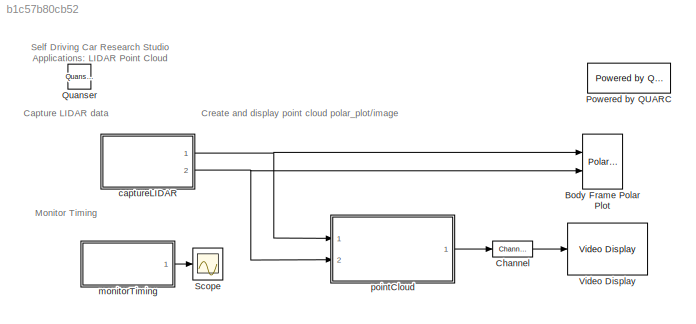
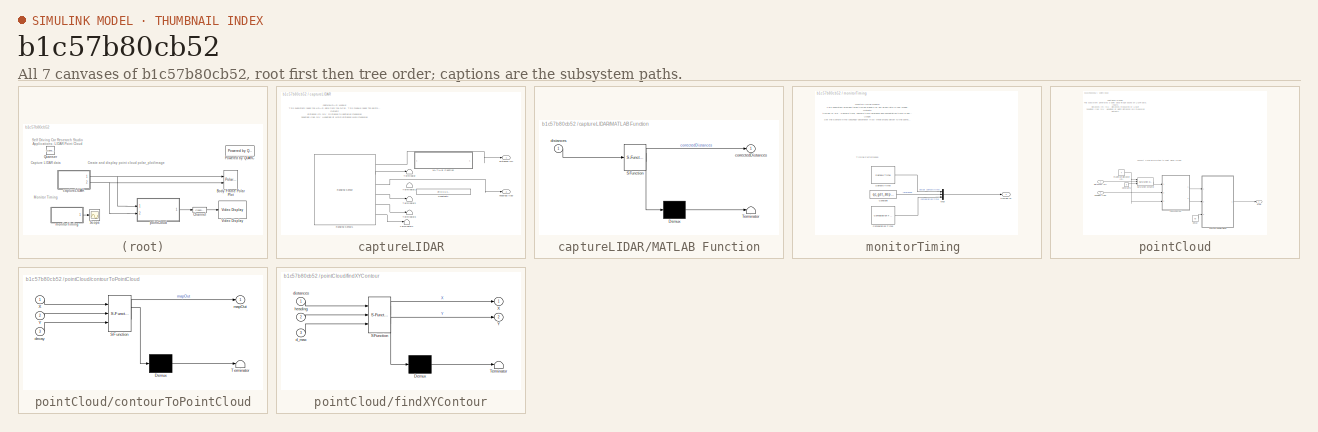
[diagram: thumbnail index - all 7 canvases of the model, root first then tree order]
MODEL slx_b1c57b80cb52
KIND model
CONFIG AbsTol = auto
CONFIG EnableMultiTasking = on
CONFIG FixedStep = 1/30
CONFIG MaxStep = auto
CONFIG MinStep = auto
CONFIG RelTol = 1e-3
CONFIG SampleTimeConstraint = Unconstrained
CONFIG SolverName = ode2
CONFIG StartTime = 0.0
CONFIG StopTime = inf
BLOCK [Reference] Body Frame Polar Plot  REF=quarc_library/Sinks/Figures/Polar Figure
  Ports = [2]
  SourceBlock = quarc_library/Sinks/Figures/Polar Figure
  SourceProductName = QUARC Targets
  SourceType = Polar Figure
BLOCK [Reference] Channel  REF=quarc_library/Signal Routing/Channel
  Ports = [1, 1]
  SourceBlock = quarc_library/Signal Routing/Channel
  SourceProductName = QUARC Targets
  SourceType = Channel
BLOCK [Reference] Powered by QUARC  REF=quarc_library/Logos/Powered by QUARC
  Ports = []
  SourceBlock = quarc_library/Logos/Powered by QUARC
  SourceProductName = QUARC Targets
  SourceType = Powered by QUARC
BLOCK [Reference] Quanser  REF=quarc_library/Logos/Quanser
  Ports = []
  SourceBlock = quarc_library/Logos/Quanser
  SourceProductName = QUARC Targets
  SourceType = Powered by Quanser
BLOCK [Scope] Scope
  Floating = off
  NumInputPorts = 1
  Ports = [1]
  ScopeSpecificationString = Simulink.scopes.TimeScopeBlockCfg('CurrentConfiguration', extmgr.ConfigurationSet(extmgr.Configuration('Core','General UI',true),extmgr.Configuration('Core','Source UI',true),extmgr.Configuration('Sources','WiredSimulink',true),extmgr.Configuration('Visuals','Time Domain',true,'SerializedDisplays',{struct('MinYLimReal','-0.00488','MaxYLimReal','0.04388','YLabelReal','','MinYLimMag','0.00000','MaxY...<+1405ch>
BLOCK [Reference] Video Display  REF=quarc_library/Multimedia/Video Display
  Ports = [1]
  SourceBlock = quarc_library/Multimedia/Video Display
  SourceProductName = QUARC Targets
  SourceType = Video Display
  Tag = Lidar_Point_Cloud/Video Display
  UserDataPersistent = on
BLOCK [SubSystem] captureLIDAR
  Ports = [0, 2]
  RequestExecContextInheritance = off
BLOCK [Constant] captureLIDAR/Constant1
  Value = pi*(0:0.5:359.95)/180
BLOCK [SubSystem] captureLIDAR/MATLAB Function
  ErrorFcn = Stateflow.Translate.translate
  PermitHierarchicalResolution = ExplicitOnly
  Ports = [1, 1]
  RequestExecContextInheritance = off
  SFBlockType = MATLAB Function
  TreatAsAtomicUnit = on
BLOCK [Demux] captureLIDAR/MATLAB Function/ Demux 
  Outputs = 1
  Ports = [1, 1]
BLOCK [S-Function] captureLIDAR/MATLAB Function/ SFunction 
  EnableBusSupport = on
  FunctionName = sf_sfun
  PortCounts = [1 2]
  Ports = [1, 2]
  SFcnIsStateOwnerBlock = off
  SFunctionDeploymentMode = off
  Tag = Stateflow S-Function 10
BLOCK [Terminator] captureLIDAR/MATLAB Function/ Terminator 
BLOCK [Outport] captureLIDAR/MATLAB Function/correctedDistances
  VectorParamsAs1DForOutWhenUnconnected = off
BLOCK [Inport] captureLIDAR/MATLAB Function/distances
BLOCK [Reference] captureLIDAR/Ranging Sensor1  REF=quarc_library/Devices/Third-Party/Sensors/Ranging Sensor
  Ports = [0, 6]
  SourceBlock = quarc_library/Devices/Third-Party/Sensors/Ranging Sensor
  SourceProductName = QUARC Targets
  SourceType = Ranging Sensor
BLOCK [Terminator] captureLIDAR/Terminator
BLOCK [Terminator] captureLIDAR/Terminator1
BLOCK [Terminator] captureLIDAR/Terminator2
BLOCK [Terminator] captureLIDAR/Terminator3
BLOCK [Terminator] captureLIDAR/Terminator4
BLOCK [Outport] captureLIDAR/distances (m)
  VectorParamsAs1DForOutWhenUnconnected = off
BLOCK [Outport] captureLIDAR/headings (rad)
  Port = 2
  VectorParamsAs1DForOutWhenUnconnected = off
BLOCK [SubSystem] monitorTiming 
  Ports = [0, 1]
  RequestExecContextInheritance = off
BLOCK [Reference] monitorTiming /Computation Time  REF=quarc_library/Sources/Time/Computation Time
  Ports = [0, 1]
  SourceBlock = quarc_library/Sources/Time/Computation Time
  SourceProductName = QUARC Targets
  SourceType = Computation Time
BLOCK [Constant] monitorTiming /Constant
  Value = qc_get_step_size
BLOCK [Mux] monitorTiming /Mux
  DisplayOption = bar
  Inputs = 3
  Ports = [3, 1]
BLOCK [Reference] monitorTiming /Sample Time  REF=quarc_library/Sources/Time/Sample Time
  Ports = [0, 1]
  Priority = -99
  SourceBlock = quarc_library/Sources/Time/Sample Time
  SourceProductName = QUARC Targets
  SourceType = Sample Time
BLOCK [Outport] monitorTiming /timing (s)
  VectorParamsAs1DForOutWhenUnconnected = off
BLOCK [SubSystem] pointCloud
  Ports = [2, 1]
  RequestExecContextInheritance = off
BLOCK [Constant] pointCloud/Constant1
  Value = 0
BLOCK [Reference] pointCloud/Saturation Dynamic  REF=simulink/Discontinuities/Saturation
Dynamic
  Ports = [3, 1]
  SourceBlock = simulink/Discontinuities/Saturation\nDynamic
  SourceProductBaseCode = SL
  SourceType = Saturation Dynamic
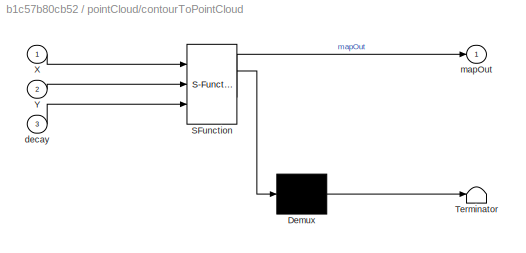
BLOCK [SubSystem] pointCloud/contourToPointCloud
  ErrorFcn = Stateflow.Translate.translate
  NameLocation = top
  PermitHierarchicalResolution = ExplicitOnly
  Ports = [3, 1]
  RequestExecContextInheritance = off
  SFBlockType = MATLAB Function
  TreatAsAtomicUnit = on
BLOCK [Demux] pointCloud/contourToPointCloud/ Demux 
  Outputs = 1
  Ports = [1, 1]
BLOCK [S-Function] pointCloud/contourToPointCloud/ SFunction 
  EnableBusSupport = on
  FunctionName = sf_sfun
  PortCounts = [3 2]
  Ports = [3, 2]
  SFcnIsStateOwnerBlock = off
  SFunctionDeploymentMode = off
  Tag = Stateflow S-Function 8
BLOCK [Terminator] pointCloud/contourToPointCloud/ Terminator 
BLOCK [Inport] pointCloud/contourToPointCloud/X
BLOCK [Inport] pointCloud/contourToPointCloud/Y
  Port = 2
BLOCK [Inport] pointCloud/contourToPointCloud/decay
  Port = 3
BLOCK [Outport] pointCloud/contourToPointCloud/mapOut
  VectorParamsAs1DForOutWhenUnconnected = off
BLOCK [Constant] pointCloud/decay
  Value = 0.5
BLOCK [Inport] pointCloud/distances (m)
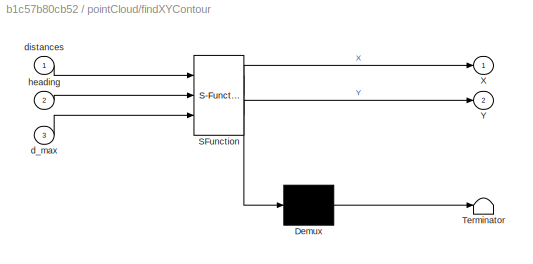
BLOCK [SubSystem] pointCloud/findXYContour
  ErrorFcn = Stateflow.Translate.translate
  NameLocation = top
  PermitHierarchicalResolution = ExplicitOnly
  Ports = [3, 2]
  RequestExecContextInheritance = off
  SFBlockType = MATLAB Function
  TreatAsAtomicUnit = on
BLOCK [Demux] pointCloud/findXYContour/ Demux 
  Outputs = 1
  Ports = [1, 1]
BLOCK [S-Function] pointCloud/findXYContour/ SFunction 
  EnableBusSupport = on
  FunctionName = sf_sfun
  PortCounts = [3 3]
  Ports = [3, 3]
  SFcnIsStateOwnerBlock = off
  SFunctionDeploymentMode = off
  Tag = Stateflow S-Function 5
BLOCK [Terminator] pointCloud/findXYContour/ Terminator 
BLOCK [Outport] pointCloud/findXYContour/X
  VectorParamsAs1DForOutWhenUnconnected = off
BLOCK [Outport] pointCloud/findXYContour/Y
  Port = 2
  VectorParamsAs1DForOutWhenUnconnected = off
BLOCK [Inport] pointCloud/findXYContour/d_max
  Port = 3
BLOCK [Inport] pointCloud/findXYContour/distances
BLOCK [Inport] pointCloud/findXYContour/heading
  Port = 2
BLOCK [Inport] pointCloud/heading (rad)
  Port = 2
BLOCK [Outport] pointCloud/map
  VectorParamsAs1DForOutWhenUnconnected = off
BLOCK [Constant] pointCloud/maximumDistance (m)
  NameLocation = top
  Value = 4
ANNOTATION (root): Self Driving Car Research Studio Applications: LIDAR Point Cloud
ANNOTATION (root): Capture LIDAR data
ANNOTATION (root): Create and display point cloud polar_plot/image
ANNOTATION (root): Monitor Timing
ANNOTATION captureLIDAR: captureLIDAR Module: This subsystem reads the LIDAR data from the QCar. This module reads 720 points per revolution at 30 Hz (30 scans per s). Outputs: distances (m) n/a : Distances to obstacles measured headings (rad) n/a : Headings at which distances were measured
ANNOTATION monitorTiming : monitorTiming Module: This subsystem provides three timing signals for any given rate in your model. Outputs: timing (s) n/a : Sample time, sample time reference and computation time in seconds. Usage: Set the 'Sample time (seconds)' parameter in all three blocks below to the same number. This will provide the actual sample time at each time step, the reference sample time that is being targeted a...<+103ch>
ANNOTATION monitorTiming : Timing Performance
ANNOTATION pointCloud: pointCloud Module: This subsystem generates a point cloud image based on LIDAR data. Inputs: distances (m) n/a : Distances measured by LIDAR headings (rad) n/a : Headings at which distances are measured Outputs: map (px) {0, 1} : 400 x 400 point cloud image Usage: The data is dynamically saturated based on the maximumDistance (m) constant. To prevent a circle with radius being the maximumDistance ...<+288ch>
ANNOTATION pointCloud: Convert LIDAR information to Point Cloud Image
LINE Channel:1 -> Video Display:1
LINE captureLIDAR/Ranging Sensor1:1 -> captureLIDAR/distances (m):1
LINE captureLIDAR/Ranging Sensor1:2 -> captureLIDAR/Terminator:1
LINE captureLIDAR/Ranging Sensor1:3 -> captureLIDAR/headings (rad):1
LINE captureLIDAR/Ranging Sensor1:4 -> captureLIDAR/Terminator2:1
LINE captureLIDAR/Ranging Sensor1:5 -> captureLIDAR/Terminator3:1
LINE captureLIDAR/Ranging Sensor1:6 -> captureLIDAR/Terminator4:1
NET captureLIDAR:1 -> Body Frame Polar Plot:1, pointCloud:1
NET captureLIDAR:2 -> Body Frame Polar Plot:2, pointCloud:2
LINE monitorTiming /Computation Time:1 -> monitorTiming /Mux:3
LINE monitorTiming /Constant:1 -> monitorTiming /Mux:2
LINE monitorTiming /Mux:1 -> monitorTiming /timing (s):1
LINE monitorTiming /Sample Time:1 -> monitorTiming /Mux:1
LINE monitorTiming :1 -> Scope:1
LINE pointCloud/Constant1:1 -> pointCloud/Saturation Dynamic:3
LINE pointCloud/Saturation Dynamic:1 -> pointCloud/findXYContour:1
LINE pointCloud/contourToPointCloud:1 -> pointCloud/map:1
LINE pointCloud/decay:1 -> pointCloud/contourToPointCloud:3
LINE pointCloud/distances (m):1 -> pointCloud/Saturation Dynamic:2
LINE pointCloud/findXYContour:1 -> pointCloud/contourToPointCloud:1
LINE pointCloud/findXYContour:2 -> pointCloud/contourToPointCloud:2
LINE pointCloud/heading (rad):1 -> pointCloud/findXYContour:2
NET pointCloud/maximumDistance (m):1 -> pointCloud/Saturation Dynamic:1, pointCloud/findXYContour:3
LINE pointCloud:1 -> Channel:1
note: NET lines group one-source signal fan-out (src -> all destinations, sorted); 1:1 wires keep LINE
CHART pointCloud/findXYContour states=1 transitions=1
  STATE_LABEL 'eML_blk_kernel()'
  STATE_LABEL 'SCRIPT:\nfunction [X, Y] = findXYContour(distances, heading, d_max)\n\n% find indices where distances corresponds to the d_max (bordering circle)\nidx = distances < d_max;\n\n% drop the bordering circle\ntemp_distances = distances(idx);\ntemp_heading = heading(idx);\n\n% find X, Y pairs from distance, heading\nX = temp_distances.*cos(temp_heading);\nY = temp_distances.*sin(temp_heading);\n'
CHART pointCloud/contourToPointCloud states=1 transitions=1
  STATE_LABEL 'eML_blk_kernel()'
  STATE_LABEL 'SCRIPT:\nfunction mapOut = contourToPointCloud(X, Y, decay)\n\ndim = 400; % Image size will be [dim x dim]\ngain = 50; % 50 pixels per meter\n\npersistent mapInternal\nif isempty(mapInternal)\n    mapInternal = zeros(dim, dim);\nelse\n    mapInternal = decay*mapInternal; % decay older data... \nend\n\npX = round(dim/2 - X*gain); % X coordinates w.r.t image center\npY = round(dim/2 - Y*gain); % Y coordinates w.r...<+150ch>'
CHART captureLIDAR/MATLAB Function states=1 transitions=1
  STATE_LABEL 'eML_blk_kernel()'
  STATE_LABEL 'SCRIPT:\nfunction correctedDistances = bodyFrameAdjustmentOnCapture(distances)\nnum = 720;\ncorrectedDistances = [distances(num/4:-1:1,1); distances(num:-1:num/4 + 1,1)];\n'
CHART  states=0 transitions=0
CHART  states=0 transitions=0
CHART  states=0 transitions=0
